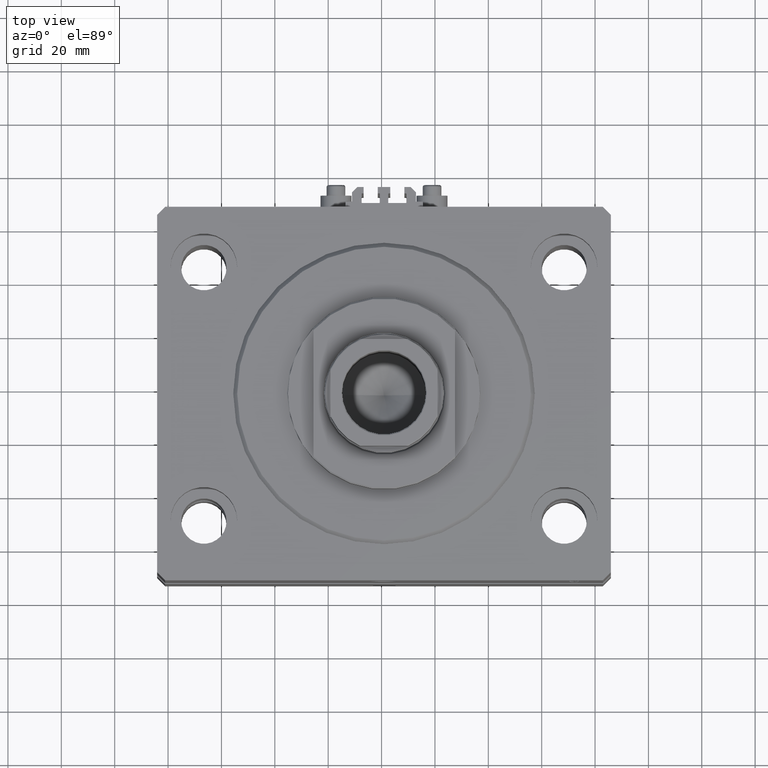
[diagram: clean part render]
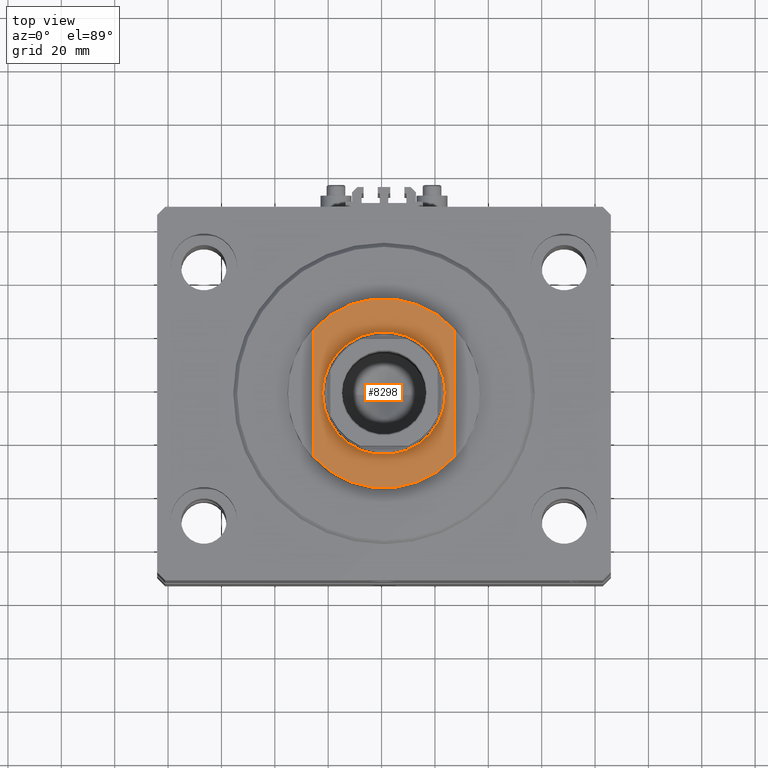
[diagram: same view with one face highlighted and labeled with its STEP entity id]
A machine part, top view. The second image highlights one B-rep face of the part: STEP entity #8298.
In plain terms, the highlighted planar face has unit normal (0, 0, 1).
Its self-contained STEP definition (entity closure, byte-faithful):
#846 = EDGE_CURVE ( 'NONE', #39479, #26370, #27796, .T. ) ;
#1993 = ORIENTED_EDGE ( 'NONE', *, *, #15220, .T. ) ;
#2692 = EDGE_CURVE ( 'NONE', #30097, #35060, #23098, .T. ) ;
#4520 = CIRCLE ( 'NONE', #21702, 35.49999999999996447 ) ;
#5124 = AXIS2_PLACEMENT_3D ( 'NONE', #45228, #11919, #26861 ) ;
#5129 = CARTESIAN_POINT ( 'NONE',  ( 0.000000000000000000, 0.000000000000000000, -8.000000000000000000 ) ) ;
#6173 = AXIS2_PLACEMENT_3D ( 'NONE', #28670, #36730, #6379 ) ;
#6379 = DIRECTION ( 'NONE',  ( -1.000000000000000000, 0.000000000000000000, 0.000000000000000000 ) ) ;
#8298 = ADVANCED_FACE ( 'NONE', ( #32050, #35241 ), #39379, .T. ) ;
#8804 = DIRECTION ( 'NONE',  ( -1.000000000000000000, 0.000000000000000000, -0.000000000000000000 ) ) ;
#9679 = ORIENTED_EDGE ( 'NONE', *, *, #846, .T. ) ;
#9785 = CARTESIAN_POINT ( 'NONE',  ( 0.000000000000000000, 0.000000000000000000, -8.000000000000000000 ) ) ;
#11919 = DIRECTION ( 'NONE',  ( 0.000000000000000000, 0.000000000000000000, -1.000000000000000000 ) ) ;
#12163 = CARTESIAN_POINT ( 'NONE',  ( 26.50000000000000000, -23.62202362203536765, -8.000000000000000000 ) ) ;
#12596 = CARTESIAN_POINT ( 'NONE',  ( 26.50000000000000000, 23.62202362203536765, -8.000000000000000000 ) ) ;
#15129 = EDGE_LOOP ( 'NONE', ( #20354, #9679, #43949, #26073 ) ) ;
#15220 = EDGE_CURVE ( 'NONE', #35060, #30097, #43715, .T. ) ;
#20056 = DIRECTION ( 'NONE',  ( 0.000000000000000000, 0.000000000000000000, -1.000000000000000000 ) ) ;
#20354 = ORIENTED_EDGE ( 'NONE', *, *, #38157, .T. ) ;
#21675 = AXIS2_PLACEMENT_3D ( 'NONE', #5129, #20056, #8804 ) ;
#21702 = AXIS2_PLACEMENT_3D ( 'NONE', #41685, #30427, #29935 ) ;
#22643 = CARTESIAN_POINT ( 'NONE',  ( -26.50000000000000711, -23.62202362203537476, -8.000000000000000000 ) ) ;
#23098 = CIRCLE ( 'NONE', #41087, 23.00000000000001776 ) ;
#24327 = EDGE_CURVE ( 'NONE', #29586, #42498, #42551, .T. ) ;
#26073 = ORIENTED_EDGE ( 'NONE', *, *, #24327, .F. ) ;
#26370 = VERTEX_POINT ( 'NONE', #12163 ) ;
#26836 = CARTESIAN_POINT ( 'NONE',  ( 26.50000000000000000, -36.36963018783666257, -8.000000000000000000 ) ) ;
#26861 = DIRECTION ( 'NONE',  ( -1.000000000000000000, 0.000000000000000000, 0.000000000000000000 ) ) ;
#27796 = LINE ( 'NONE', #26836, #41014 ) ;
#28280 = CARTESIAN_POINT ( 'NONE',  ( -23.00000000000001776, 0.000000000000000000, -8.000000000000000000 ) ) ;
#28670 = CARTESIAN_POINT ( 'NONE',  ( 0.000000000000000000, 0.000000000000000000, -8.000000000000000000 ) ) ;
#29586 = VERTEX_POINT ( 'NONE', #29841 ) ;
#29841 = CARTESIAN_POINT ( 'NONE',  ( -26.50000000000000000, 23.62202362203536765, -8.000000000000000000 ) ) ;
#29935 = DIRECTION ( 'NONE',  ( -1.000000000000000000, 0.000000000000000000, 0.000000000000000000 ) ) ;
#30097 = VERTEX_POINT ( 'NONE', #28280 ) ;
#30427 = DIRECTION ( 'NONE',  ( 0.000000000000000000, 0.000000000000000000, -1.000000000000000000 ) ) ;
#32050 = FACE_BOUND ( 'NONE', #34564, .T. ) ;
#34483 = CARTESIAN_POINT ( 'NONE',  ( -26.50000000000000000, -36.36963018783666257, -8.000000000000000000 ) ) ;
#34564 = EDGE_LOOP ( 'NONE', ( #46696, #1993 ) ) ;
#35060 = VERTEX_POINT ( 'NONE', #41356 ) ;
#35241 = FACE_OUTER_BOUND ( 'NONE', #15129, .T. ) ;
#35742 = DIRECTION ( 'NONE',  ( -0.000000000000000000, -0.000000000000000000, 1.000000000000000000 ) ) ;
#36730 = DIRECTION ( 'NONE',  ( -0.000000000000000000, -0.000000000000000000, 1.000000000000000000 ) ) ;
#38144 = DIRECTION ( 'NONE',  ( -0.000000000000000000, -1.000000000000000000, -0.000000000000000000 ) ) ;
#38157 = EDGE_CURVE ( 'NONE', #29586, #39479, #39492, .T. ) ;
#39379 = PLANE ( 'NONE',  #21675 ) ;
#39479 = VERTEX_POINT ( 'NONE', #12596 ) ;
#39492 = CIRCLE ( 'NONE', #5124, 35.49999999999996447 ) ;
#41014 = VECTOR ( 'NONE', #42020, 1000.000000000000000 ) ;
#41087 = AXIS2_PLACEMENT_3D ( 'NONE', #9785, #35742, #46781 ) ;
#41356 = CARTESIAN_POINT ( 'NONE',  ( 23.00000000000001776, 2.816687638038914718E-15, -8.000000000000000000 ) ) ;
#41644 = VECTOR ( 'NONE', #38144, 1000.000000000000000 ) ;
#41685 = CARTESIAN_POINT ( 'NONE',  ( 0.000000000000000000, 0.000000000000000000, -8.000000000000000000 ) ) ;
#42020 = DIRECTION ( 'NONE',  ( 0.000000000000000000, -1.000000000000000000, -0.000000000000000000 ) ) ;
#42498 = VERTEX_POINT ( 'NONE', #22643 ) ;
#42551 = LINE ( 'NONE', #34483, #41644 ) ;
#43041 = EDGE_CURVE ( 'NONE', #26370, #42498, #4520, .T. ) ;
#43715 = CIRCLE ( 'NONE', #6173, 23.00000000000001776 ) ;
#43949 = ORIENTED_EDGE ( 'NONE', *, *, #43041, .T. ) ;
#45228 = CARTESIAN_POINT ( 'NONE',  ( 0.000000000000000000, 0.000000000000000000, -8.000000000000000000 ) ) ;
#46696 = ORIENTED_EDGE ( 'NONE', *, *, #2692, .T. ) ;
#46781 = DIRECTION ( 'NONE',  ( -1.000000000000000000, 0.000000000000000000, 0.000000000000000000 ) ) ;